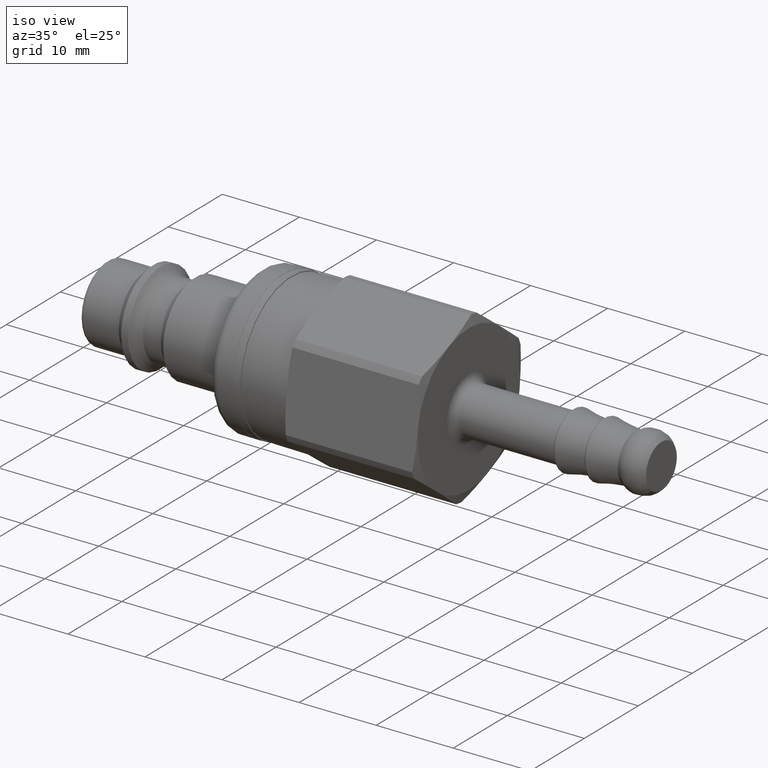
[diagram: clean part render]
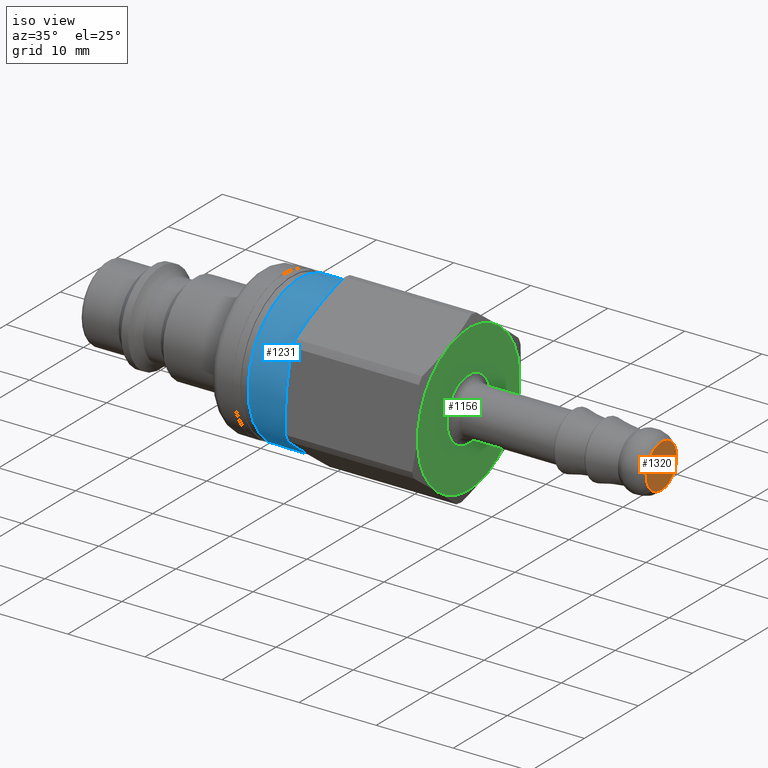
[diagram: same view with three faces highlighted in distinct colors, each labeled with its STEP entity id]
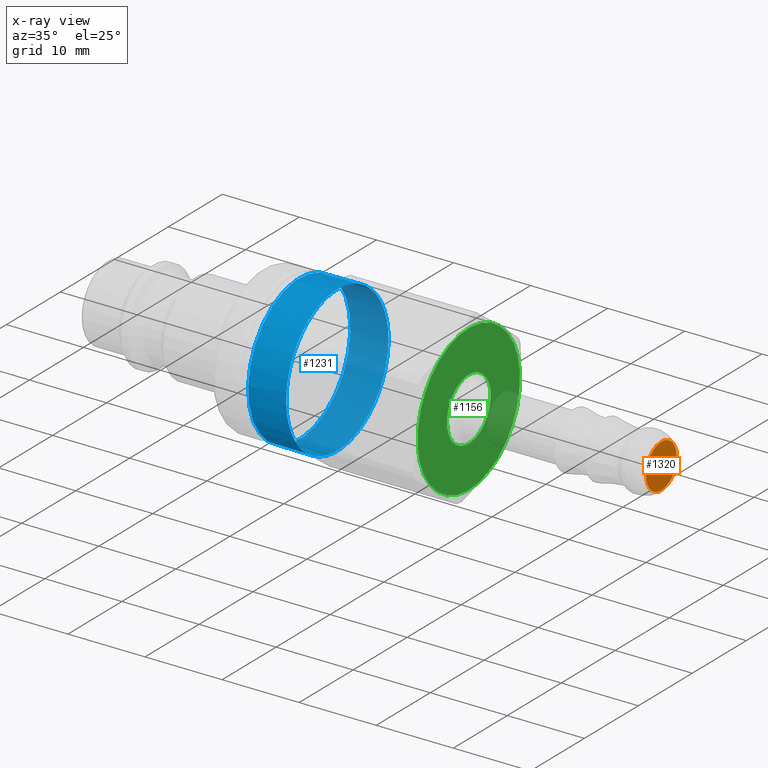
[diagram: x-ray of the same camera — body ghosted, the three highlighted faces saturated]
A machine part, iso view with three faces highlighted in distinct colors.
The next image is the same camera in x-ray (body ghosted, the three faces saturated) — at least one of them is partly hidden behind the body in this view.
Their STEP definitions:

[orange] entity #1320 — the highlighted planar face has unit normal (1, 0, 0).
#942=CARTESIAN_POINT('',(71.999999999999986,-1.733027017019978,-2.266798328835836));
#943=VERTEX_POINT('',#942);
#944=CARTESIAN_POINT('',(71.999999999999986,0.0,0.0));
#945=DIRECTION('',(-1.0,0.0,0.0));
#946=DIRECTION('',(0.0,-0.607360098639835,-0.794426655255355));
#947=AXIS2_PLACEMENT_3D('',#944,#945,#946);
#948=CIRCLE('',#947,2.853376474518233);
#949=EDGE_CURVE('',#943,#943,#948,.T.);
#1312=CARTESIAN_POINT('',(71.999999999999986,-1.489057609615819,-1.947686486054656));
#1313=DIRECTION('',(1.0,0.0,0.0));
#1314=DIRECTION('',(0.0,-0.794426655255355,0.607360098639835));
#1315=AXIS2_PLACEMENT_3D('',#1312,#1313,#1314);
#1316=PLANE('',#1315);
#1317=ORIENTED_EDGE('',*,*,#949,.F.);
#1318=EDGE_LOOP('',(#1317));
#1319=FACE_OUTER_BOUND('',#1318,.T.);
#1320=ADVANCED_FACE('',(#1319),#1316,.T.);

[blue] entity #1231 — the highlighted cylindrical surface (bore or boss wall) has radius 9.475 mm, axis along (-1, 0, 0).
#1200=CARTESIAN_POINT('',(29.949999999999982,-5.754736934612433,-7.527192558544487));
#1201=VERTEX_POINT('',#1200);
#1202=CARTESIAN_POINT('',(29.949999999999982,0.0,0.0));
#1203=DIRECTION('',(-1.0,0.0,0.0));
#1204=DIRECTION('',(0.0,-0.607360098639835,-0.794426655255355));
#1205=AXIS2_PLACEMENT_3D('',#1202,#1203,#1204);
#1206=CIRCLE('',#1205,9.475);
#1207=EDGE_CURVE('',#1201,#1201,#1206,.T.);
#1212=CARTESIAN_POINT('',(27.47499999999998,0.0,0.0));
#1213=DIRECTION('',(-1.0,0.0,0.0));
#1214=DIRECTION('',(0.0,-0.607360098639835,-0.794426655255355));
#1215=AXIS2_PLACEMENT_3D('',#1212,#1213,#1214);
#1216=CYLINDRICAL_SURFACE('',#1215,9.475);
#1217=CARTESIAN_POINT('',(24.999999999999982,-5.754736934612433,-7.527192558544487));
#1218=VERTEX_POINT('',#1217);
#1219=CARTESIAN_POINT('',(24.999999999999982,0.0,0.0));
#1220=DIRECTION('',(-1.0,0.0,0.0));
#1221=DIRECTION('',(0.0,-0.607360098639835,-0.794426655255355));
#1222=AXIS2_PLACEMENT_3D('',#1219,#1220,#1221);
#1223=CIRCLE('',#1222,9.475);
#1224=EDGE_CURVE('',#1218,#1218,#1223,.T.);
#1225=ORIENTED_EDGE('',*,*,#1224,.F.);
#1226=EDGE_LOOP('',(#1225));
#1227=FACE_OUTER_BOUND('',#1226,.T.);
#1228=ORIENTED_EDGE('',*,*,#1207,.T.);
#1229=EDGE_LOOP('',(#1228));
#1230=FACE_BOUND('',#1229,.T.);
#1231=ADVANCED_FACE('',(#1227,#1230),#1216,.T.);

[green] entity #1156 — the highlighted planar face has unit normal (1, 0, 0).
#75=CARTESIAN_POINT('',(46.999999999999986,3.650979347959871,-8.770424721800566));
#76=VERTEX_POINT('',#75);
#159=CARTESIAN_POINT('',(46.999999999999986,9.420900285038291,-1.223371496874693));
#160=VERTEX_POINT('',#159);
#243=CARTESIAN_POINT('',(46.999999999999986,5.769920937078429,7.547053224925872));
#244=VERTEX_POINT('',#243);
#327=CARTESIAN_POINT('',(46.999999999999986,-3.650979347959865,8.770424721800566));
#328=VERTEX_POINT('',#327);
#411=CARTESIAN_POINT('',(46.999999999999986,-9.420900285038291,1.223371496874697));
#412=VERTEX_POINT('',#411);
#772=CARTESIAN_POINT('',(46.999999999999986,-5.76992093707843,-7.54705322492587));
#773=VERTEX_POINT('',#772);
#774=CARTESIAN_POINT('',(46.999999999999986,0.0,0.0));
#775=DIRECTION('',(-1.0,0.0,0.0));
#776=DIRECTION('',(0.0,-0.607360098639835,-0.794426655255355));
#777=AXIS2_PLACEMENT_3D('',#774,#775,#776);
#778=CIRCLE('',#777,9.5);
#779=EDGE_CURVE('',#76,#773,#778,.T.);
#818=CARTESIAN_POINT('',(46.999999999999986,0.0,0.0));
#819=DIRECTION('',(-1.0,0.0,0.0));
#820=DIRECTION('',(0.0,-0.607360098639835,-0.794426655255355));
#821=AXIS2_PLACEMENT_3D('',#818,#819,#820);
#822=CIRCLE('',#821,9.5);
#823=EDGE_CURVE('',#773,#412,#822,.T.);
#836=CARTESIAN_POINT('',(46.999999999999986,0.0,0.0));
#837=DIRECTION('',(-1.0,0.0,0.0));
#838=DIRECTION('',(0.0,-0.607360098639835,-0.794426655255355));
#839=AXIS2_PLACEMENT_3D('',#836,#837,#838);
#840=CIRCLE('',#839,9.5);
#841=EDGE_CURVE('',#412,#328,#840,.T.);
#854=CARTESIAN_POINT('',(46.999999999999986,0.0,0.0));
#855=DIRECTION('',(-1.0,0.0,0.0));
#856=DIRECTION('',(0.0,-0.607360098639835,-0.794426655255355));
#857=AXIS2_PLACEMENT_3D('',#854,#855,#856);
#858=CIRCLE('',#857,9.5);
#859=EDGE_CURVE('',#328,#244,#858,.T.);
#872=CARTESIAN_POINT('',(46.999999999999986,0.0,0.0));
#873=DIRECTION('',(-1.0,0.0,0.0));
#874=DIRECTION('',(0.0,-0.607360098639835,-0.794426655255355));
#875=AXIS2_PLACEMENT_3D('',#872,#873,#874);
#876=CIRCLE('',#875,9.5);
#877=EDGE_CURVE('',#244,#160,#876,.T.);
#1119=CARTESIAN_POINT('',(46.999999999999972,-2.459808399491331,-3.217427953784187));
#1120=VERTEX_POINT('',#1119);
#1121=CARTESIAN_POINT('',(46.999999999999972,0.0,0.0));
#1122=DIRECTION('',(-1.0,0.0,0.0));
#1123=DIRECTION('',(0.0,-0.607360098639835,-0.794426655255355));
#1124=AXIS2_PLACEMENT_3D('',#1121,#1122,#1123);
#1125=CIRCLE('',#1124,4.05);
#1126=EDGE_CURVE('',#1120,#1120,#1125,.T.);
#1134=CARTESIAN_POINT('',(46.999999999999986,-4.11486466828488,-5.382240589355028));
#1135=DIRECTION('',(1.0,0.0,0.0));
#1136=DIRECTION('',(0.0,-0.794426655255355,0.607360098639835));
#1137=AXIS2_PLACEMENT_3D('',#1134,#1135,#1136);
#1138=PLANE('',#1137);
#1139=ORIENTED_EDGE('',*,*,#823,.F.);
#1140=ORIENTED_EDGE('',*,*,#779,.F.);
#1141=CARTESIAN_POINT('',(46.999999999999986,0.0,0.0));
#1142=DIRECTION('',(-1.0,0.0,0.0));
#1143=DIRECTION('',(0.0,-0.607360098639835,-0.794426655255355));
#1144=AXIS2_PLACEMENT_3D('',#1141,#1142,#1143);
#1145=CIRCLE('',#1144,9.5);
#1146=EDGE_CURVE('',#160,#76,#1145,.T.);
#1147=ORIENTED_EDGE('',*,*,#1146,.F.);
#1148=ORIENTED_EDGE('',*,*,#877,.F.);
#1149=ORIENTED_EDGE('',*,*,#859,.F.);
#1150=ORIENTED_EDGE('',*,*,#841,.F.);
#1151=EDGE_LOOP('',(#1139,#1140,#1147,#1148,#1149,#1150));
#1152=FACE_OUTER_BOUND('',#1151,.T.);
#1153=ORIENTED_EDGE('',*,*,#1126,.T.);
#1154=EDGE_LOOP('',(#1153));
#1155=FACE_BOUND('',#1154,.T.);
#1156=ADVANCED_FACE('',(#1152,#1155),#1138,.T.);